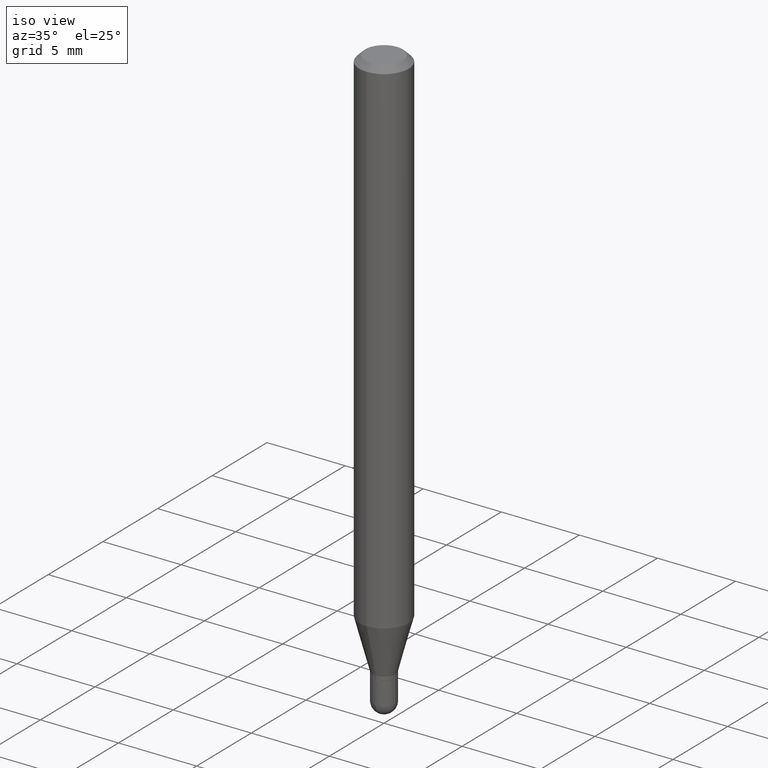
[diagram: clean part render]
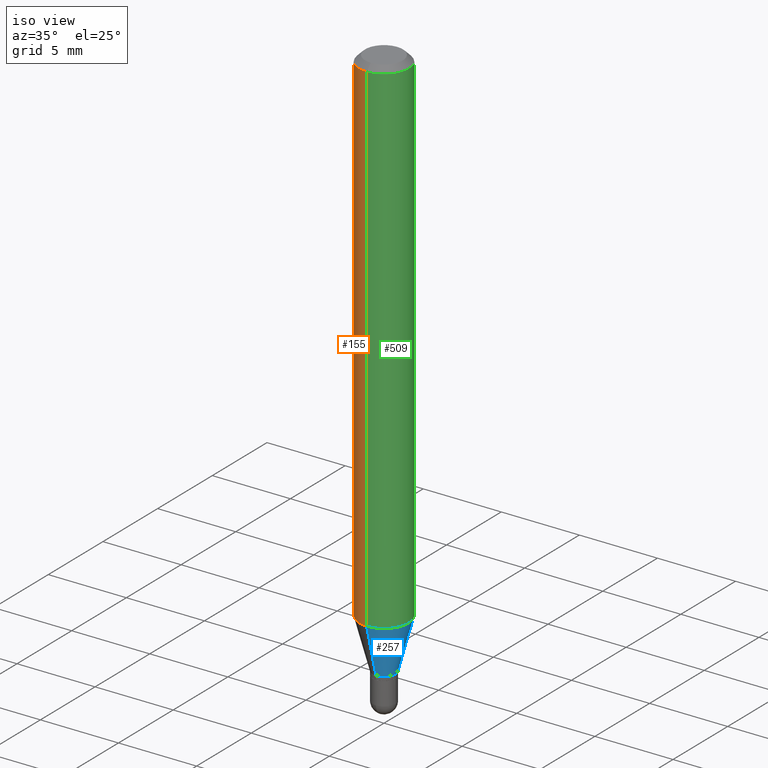
[diagram: same view with three faces highlighted in distinct colors, each labeled with its STEP entity id]
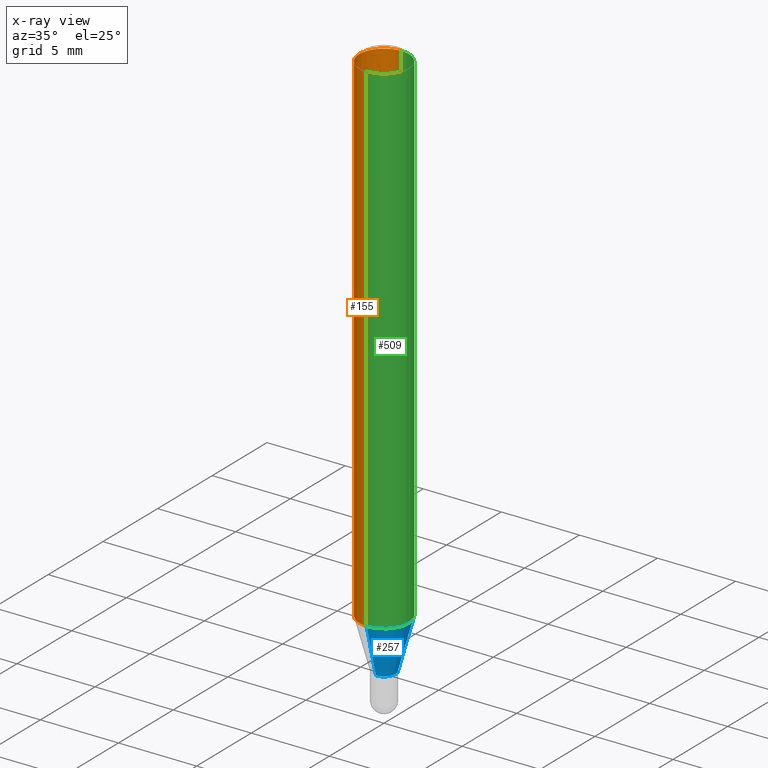
[diagram: x-ray of the same camera — body ghosted, the three highlighted faces saturated]
A machine part, iso view with three faces highlighted in distinct colors.
The next image is the same camera in x-ray (body ghosted, the three faces saturated) — at least one of them is partly hidden behind the body in this view.
Their STEP definitions:

[orange] entity #155 — the highlighted cylindrical surface (edge-blend (fillet) strip) has radius 1.5875 mm, axis along (-0, 0, 1).
#51 = DIRECTION ( 'NONE',  ( -2.445462362076006413E-29, 3.491490567174196263E-15, 1.000000000000000000 ) ) ;
#55 = DIRECTION ( 'NONE',  ( -2.445462362076006133E-29, 3.491490567174196658E-15, 1.000000000000000000 ) ) ;
#79 = DIRECTION ( 'NONE',  ( -6.982962677686265922E-15, -1.000000000000000000, 3.491490567174195869E-15 ) ) ;
#90 = CARTESIAN_POINT ( 'NONE',  ( -4.364351673553916201E-16, -0.06250000000000000000, 2.182181604483872418E-16 ) ) ;
#94 = VERTEX_POINT ( 'NONE', #383 ) ;
#126 = VECTOR ( 'NONE', #207, 39.37007874015748143 ) ;
#130 = ORIENTED_EDGE ( 'NONE', *, *, #460, .F. ) ;
#136 = EDGE_LOOP ( 'NONE', ( #130, #208, #436, #374 ) ) ;
#141 = AXIS2_PLACEMENT_3D ( 'NONE', #478, #51, #334 ) ;
#143 = CYLINDRICAL_SURFACE ( 'NONE', #197, 0.06250000000000000000 ) ;
#155 = ADVANCED_FACE ( 'NONE', ( #265 ), #143, .T. ) ;
#171 = CARTESIAN_POINT ( 'NONE',  ( 3.668193543114090054E-31, -5.237235850761408829E-17, -0.01500000000000032904 ) ) ;
#190 = VERTEX_POINT ( 'NONE', #393 ) ;
#194 = DIRECTION ( 'NONE',  ( -2.445462362076006413E-29, 3.491490567174196263E-15, 1.000000000000000000 ) ) ;
#197 = AXIS2_PLACEMENT_3D ( 'NONE', #395, #194, #79 ) ;
#207 = DIRECTION ( 'NONE',  ( -2.445462362076006133E-29, 3.491490567174196658E-15, 1.000000000000000000 ) ) ;
#208 = ORIENTED_EDGE ( 'NONE', *, *, #368, .T. ) ;
#234 = VERTEX_POINT ( 'NONE', #391 ) ;
#246 = LINE ( 'NONE', #90, #412 ) ;
#249 = DIRECTION ( 'NONE',  ( -6.982962677686265922E-15, -1.000000000000000000, 3.483106191921935554E-15 ) ) ;
#265 = FACE_OUTER_BOUND ( 'NONE', #136, .T. ) ;
#277 = LINE ( 'NONE', #356, #126 ) ;
#334 = DIRECTION ( 'NONE',  ( -6.982962677686265922E-15, -1.000000000000000000, 4.370956789862821150E-15 ) ) ;
#348 = EDGE_CURVE ( 'NONE', #190, #234, #372, .T. ) ;
#356 = CARTESIAN_POINT ( 'NONE',  ( 4.440892098500625669E-16, 0.06250000000000000000, -2.182181604483872418E-16 ) ) ;
#360 = CIRCLE ( 'NONE', #141, 0.06250000000000000000 ) ;
#368 = EDGE_CURVE ( 'NONE', #94, #502, #360, .T. ) ;
#372 = CIRCLE ( 'NONE', #503, 0.06250000000000000000 ) ;
#374 = ORIENTED_EDGE ( 'NONE', *, *, #348, .F. ) ;
#383 = CARTESIAN_POINT ( 'NONE',  ( 4.440892098500935790E-16, 0.06249999999999551054, -1.277976297946443518 ) ) ;
#391 = CARTESIAN_POINT ( 'NONE',  ( -4.364351673553912750E-16, -0.06250000000000005551, -0.01500000000000011047 ) ) ;
#393 = CARTESIAN_POINT ( 'NONE',  ( 4.440892098500940720E-16, 0.06249999999999995143, -0.01500000000000054588 ) ) ;
#395 = CARTESIAN_POINT ( 'NONE',  ( 0.000000000000000000, 0.000000000000000000, 0.000000000000000000 ) ) ;
#412 = VECTOR ( 'NONE', #55, 39.37007874015748143 ) ;
#436 = ORIENTED_EDGE ( 'NONE', *, *, #466, .T. ) ;
#448 = CARTESIAN_POINT ( 'NONE',  ( -4.364351673553605587E-16, -0.06250000000000449640, -1.277976297946442852 ) ) ;
#460 = EDGE_CURVE ( 'NONE', #94, #190, #277, .T. ) ;
#466 = EDGE_CURVE ( 'NONE', #502, #234, #246, .T. ) ;
#474 = DIRECTION ( 'NONE',  ( -2.445462362076006413E-29, 3.491490567174196263E-15, 1.000000000000000000 ) ) ;
#478 = CARTESIAN_POINT ( 'NONE',  ( 3.125242936253259023E-29, -4.462042189352206185E-15, -1.277976297946443296 ) ) ;
#502 = VERTEX_POINT ( 'NONE', #448 ) ;
#503 = AXIS2_PLACEMENT_3D ( 'NONE', #171, #474, #249 ) ;

[blue] entity #257 — the highlighted conical surface has half-angle 15 deg.
#21 = CIRCLE ( 'NONE', #267, 0.06250000000000000000 ) ;
#29 = DIRECTION ( 'NONE',  ( -2.445462362076006413E-29, 3.491490567174196263E-15, 1.000000000000000000 ) ) ;
#48 = VERTEX_POINT ( 'NONE', #104 ) ;
#73 = VECTOR ( 'NONE', #422, 39.37007874015748854 ) ;
#94 = VERTEX_POINT ( 'NONE', #383 ) ;
#104 = CARTESIAN_POINT ( 'NONE',  ( 3.250733016102783684E-16, 0.02899999999999502281, -1.403000000000000247 ) ) ;
#109 = EDGE_CURVE ( 'NONE', #502, #94, #21, .T. ) ;
#119 = DIRECTION ( 'NONE',  ( -6.982962677686265922E-15, -1.000000000000000000, 0.000000000000000000 ) ) ;
#134 = ORIENTED_EDGE ( 'NONE', *, *, #493, .T. ) ;
#137 = AXIS2_PLACEMENT_3D ( 'NONE', #188, #29, #472 ) ;
#138 = ORIENTED_EDGE ( 'NONE', *, *, #109, .F. ) ;
#140 = DIRECTION ( 'NONE',  ( -2.445462362076006413E-29, 3.491490567174196263E-15, 1.000000000000000000 ) ) ;
#142 = VECTOR ( 'NONE', #398, 39.37007874015748143 ) ;
#157 = CARTESIAN_POINT ( 'NONE',  ( -2.025059176528669025E-16, -0.02900000000000482400, -1.403000000000000247 ) ) ;
#162 = EDGE_CURVE ( 'NONE', #231, #502, #512, .T. ) ;
#167 = AXIS2_PLACEMENT_3D ( 'NONE', #276, #320, #119 ) ;
#178 = CONICAL_SURFACE ( 'NONE', #137, 0.02899999999999992514, 0.2617993877991505736 ) ;
#188 = CARTESIAN_POINT ( 'NONE',  ( 3.430983693992638216E-29, -4.898561265745397268E-15, -1.403000000000000247 ) ) ;
#223 = CIRCLE ( 'NONE', #167, 0.02899999999999992514 ) ;
#230 = EDGE_CURVE ( 'NONE', #231, #48, #223, .T. ) ;
#231 = VERTEX_POINT ( 'NONE', #425 ) ;
#257 = ADVANCED_FACE ( 'NONE', ( #469 ), #178, .T. ) ;
#267 = AXIS2_PLACEMENT_3D ( 'NONE', #494, #140, #452 ) ;
#276 = CARTESIAN_POINT ( 'NONE',  ( 3.430983693992638216E-29, -4.898561265745397268E-15, -1.403000000000000247 ) ) ;
#286 = ORIENTED_EDGE ( 'NONE', *, *, #230, .T. ) ;
#302 = EDGE_LOOP ( 'NONE', ( #286, #134, #138, #399 ) ) ;
#320 = DIRECTION ( 'NONE',  ( -2.445462362076006413E-29, 3.491490567174196263E-15, 1.000000000000000000 ) ) ;
#383 = CARTESIAN_POINT ( 'NONE',  ( 4.440892098500935790E-16, 0.06249999999999551054, -1.277976297946443518 ) ) ;
#398 = DIRECTION ( 'NONE',  ( 1.839019923739602287E-15, 0.2588190451025252359, 0.9659258262890670910 ) ) ;
#399 = ORIENTED_EDGE ( 'NONE', *, *, #162, .F. ) ;
#422 = DIRECTION ( 'NONE',  ( -1.807323732225332111E-15, -0.2588190451025184635, 0.9659258262890689783 ) ) ;
#425 = CARTESIAN_POINT ( 'NONE',  ( -2.025059176528669025E-16, -0.02900000000000482400, -1.403000000000000247 ) ) ;
#442 = LINE ( 'NONE', #484, #142 ) ;
#448 = CARTESIAN_POINT ( 'NONE',  ( -4.364351673553605587E-16, -0.06250000000000449640, -1.277976297946442852 ) ) ;
#452 = DIRECTION ( 'NONE',  ( -6.982962677686265922E-15, -1.000000000000000000, 4.370956789862821150E-15 ) ) ;
#469 = FACE_OUTER_BOUND ( 'NONE', #302, .T. ) ;
#472 = DIRECTION ( 'NONE',  ( -6.982962677686265922E-15, -1.000000000000000000, 0.000000000000000000 ) ) ;
#484 = CARTESIAN_POINT ( 'NONE',  ( 2.060573933704627882E-16, 0.02899999999999502281, -1.403000000000000247 ) ) ;
#493 = EDGE_CURVE ( 'NONE', #48, #94, #442, .T. ) ;
#494 = CARTESIAN_POINT ( 'NONE',  ( 3.125242936253259023E-29, -4.462042189352206185E-15, -1.277976297946443296 ) ) ;
#502 = VERTEX_POINT ( 'NONE', #448 ) ;
#512 = LINE ( 'NONE', #157, #73 ) ;

[green] entity #509 — the highlighted cylindrical surface (edge-blend (fillet) strip) has radius 1.5875 mm, axis along (-0, 0, 1).
#21 = CIRCLE ( 'NONE', #267, 0.06250000000000000000 ) ;
#42 = CYLINDRICAL_SURFACE ( 'NONE', #468, 0.06250000000000000000 ) ;
#52 = FACE_OUTER_BOUND ( 'NONE', #289, .T. ) ;
#55 = DIRECTION ( 'NONE',  ( -2.445462362076006133E-29, 3.491490567174196658E-15, 1.000000000000000000 ) ) ;
#90 = CARTESIAN_POINT ( 'NONE',  ( -4.364351673553916201E-16, -0.06250000000000000000, 2.182181604483872418E-16 ) ) ;
#94 = VERTEX_POINT ( 'NONE', #383 ) ;
#103 = AXIS2_PLACEMENT_3D ( 'NONE', #287, #331, #123 ) ;
#109 = EDGE_CURVE ( 'NONE', #502, #94, #21, .T. ) ;
#123 = DIRECTION ( 'NONE',  ( -6.982962677686265922E-15, -1.000000000000000000, 3.483106191921935554E-15 ) ) ;
#126 = VECTOR ( 'NONE', #207, 39.37007874015748143 ) ;
#129 = DIRECTION ( 'NONE',  ( -2.445462362076006413E-29, 3.491490567174196263E-15, 1.000000000000000000 ) ) ;
#140 = DIRECTION ( 'NONE',  ( -2.445462362076006413E-29, 3.491490567174196263E-15, 1.000000000000000000 ) ) ;
#164 = CARTESIAN_POINT ( 'NONE',  ( 0.000000000000000000, 0.000000000000000000, 0.000000000000000000 ) ) ;
#165 = ORIENTED_EDGE ( 'NONE', *, *, #466, .F. ) ;
#190 = VERTEX_POINT ( 'NONE', #393 ) ;
#207 = DIRECTION ( 'NONE',  ( -2.445462362076006133E-29, 3.491490567174196658E-15, 1.000000000000000000 ) ) ;
#209 = CIRCLE ( 'NONE', #103, 0.06250000000000000000 ) ;
#214 = DIRECTION ( 'NONE',  ( -6.982962677686265922E-15, -1.000000000000000000, 3.491490567174195869E-15 ) ) ;
#215 = ORIENTED_EDGE ( 'NONE', *, *, #109, .T. ) ;
#217 = ORIENTED_EDGE ( 'NONE', *, *, #460, .T. ) ;
#234 = VERTEX_POINT ( 'NONE', #391 ) ;
#246 = LINE ( 'NONE', #90, #412 ) ;
#267 = AXIS2_PLACEMENT_3D ( 'NONE', #494, #140, #452 ) ;
#277 = LINE ( 'NONE', #356, #126 ) ;
#287 = CARTESIAN_POINT ( 'NONE',  ( 3.668193543114090054E-31, -5.237235850761408829E-17, -0.01500000000000032904 ) ) ;
#289 = EDGE_LOOP ( 'NONE', ( #215, #217, #407, #165 ) ) ;
#331 = DIRECTION ( 'NONE',  ( -2.445462362076006413E-29, 3.491490567174196263E-15, 1.000000000000000000 ) ) ;
#339 = EDGE_CURVE ( 'NONE', #234, #190, #209, .T. ) ;
#356 = CARTESIAN_POINT ( 'NONE',  ( 4.440892098500625669E-16, 0.06250000000000000000, -2.182181604483872418E-16 ) ) ;
#383 = CARTESIAN_POINT ( 'NONE',  ( 4.440892098500935790E-16, 0.06249999999999551054, -1.277976297946443518 ) ) ;
#391 = CARTESIAN_POINT ( 'NONE',  ( -4.364351673553912750E-16, -0.06250000000000005551, -0.01500000000000011047 ) ) ;
#393 = CARTESIAN_POINT ( 'NONE',  ( 4.440892098500940720E-16, 0.06249999999999995143, -0.01500000000000054588 ) ) ;
#407 = ORIENTED_EDGE ( 'NONE', *, *, #339, .F. ) ;
#412 = VECTOR ( 'NONE', #55, 39.37007874015748143 ) ;
#448 = CARTESIAN_POINT ( 'NONE',  ( -4.364351673553605587E-16, -0.06250000000000449640, -1.277976297946442852 ) ) ;
#452 = DIRECTION ( 'NONE',  ( -6.982962677686265922E-15, -1.000000000000000000, 4.370956789862821150E-15 ) ) ;
#460 = EDGE_CURVE ( 'NONE', #94, #190, #277, .T. ) ;
#466 = EDGE_CURVE ( 'NONE', #502, #234, #246, .T. ) ;
#468 = AXIS2_PLACEMENT_3D ( 'NONE', #164, #129, #214 ) ;
#494 = CARTESIAN_POINT ( 'NONE',  ( 3.125242936253259023E-29, -4.462042189352206185E-15, -1.277976297946443296 ) ) ;
#502 = VERTEX_POINT ( 'NONE', #448 ) ;
#509 = ADVANCED_FACE ( 'NONE', ( #52 ), #42, .T. ) ;